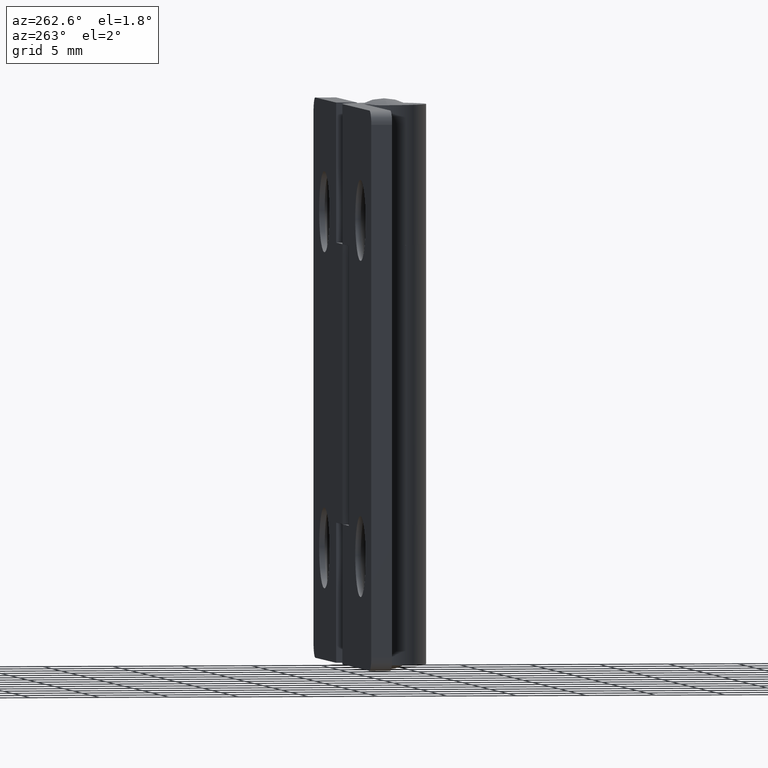
[diagram: clean part render]
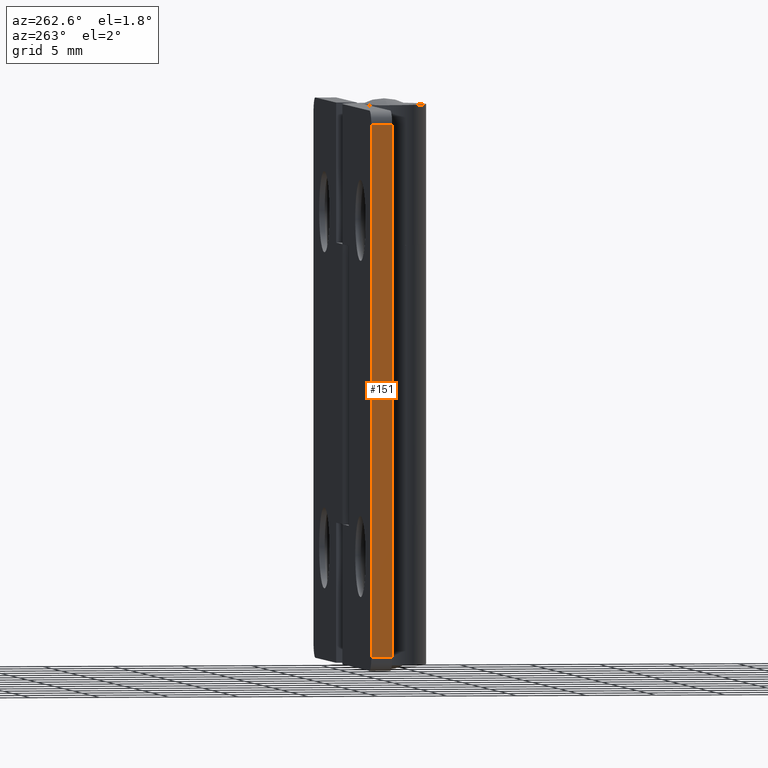
[diagram: same view with one face highlighted and labeled with its STEP entity id]
A machine part, auxiliary view. The second image highlights one B-rep face of the part: STEP entity #151.
In plain terms, the highlighted planar face has unit normal (-1, 0, 0).
Its self-contained STEP definition (entity closure, byte-faithful):
#151=ADVANCED_FACE('',(#226),#225,.T.);
#225=PLANE('',#768);
#226=FACE_OUTER_BOUND('',#769,.T.);
#765=CARTESIAN_POINT('',(-6.00000000000E+00,-1.65000000000E+00,-1.08000000000E+01));
#766=DIRECTION('',(-1.00000000000E+00,0.00000000000E+00,0.00000000000E+00));
#767=DIRECTION('',(0.00000000000E+00,0.00000000000E+00,1.00000000000E+00));
#768=AXIS2_PLACEMENT_3D('',#765,#766,#767);
#769=EDGE_LOOP('',(#1101,#1102,#1103,#1104));
#1101=ORIENTED_EDGE('',*,*,#1363,.T.);
#1102=ORIENTED_EDGE('',*,*,#1380,.T.);
#1103=ORIENTED_EDGE('',*,*,#1381,.F.);
#1104=ORIENTED_EDGE('',*,*,#1382,.T.);
#1363=EDGE_CURVE('',#1516,#1509,#1517,.T.);
#1380=EDGE_CURVE('',#1509,#1633,#1634,.T.);
#1381=EDGE_CURVE('',#1640,#1633,#1641,.T.);
#1382=EDGE_CURVE('',#1640,#1516,#1647,.T.);
#1509=VERTEX_POINT('',#2440);
#1516=VERTEX_POINT('',#2445);
#1517=LINE('',#2446,#2447);
#1633=VERTEX_POINT('',#2520);
#1634=LINE('',#2521,#2522);
#1640=VERTEX_POINT('',#2524);
#1641=LINE('',#2525,#2526);
#1647=LINE('',#2528,#2529);
#2440=CARTESIAN_POINT('',(-6.00000000000E+00,-1.13686837722E-13,-7.00000000000E+00));
#2445=CARTESIAN_POINT('',(-6.00000000000E+00,-1.13686837722E-13,3.10000000000E+01));
#2446=CARTESIAN_POINT('',(-6.00000000000E+00,-1.13686837722E-13,3.10000000000E+01));
#2447=VECTOR('',#2448,3.80000000000E+01);
#2448=DIRECTION('',(0.00000000000E+00,0.00000000000E+00,-1.00000000000E+00));
#2520=CARTESIAN_POINT('',(-6.00000000000E+00,-1.50000000000E+00,-7.00000000000E+00));
#2521=CARTESIAN_POINT('',(-6.00000000000E+00,-1.13686837722E-13,-7.00000000000E+00));
#2522=VECTOR('',#2523,1.50000000000E+00);
#2523=DIRECTION('',(0.00000000000E+00,-1.00000000000E+00,0.00000000000E+00));
#2524=CARTESIAN_POINT('',(-6.00000000000E+00,-1.50000000000E+00,3.10000000000E+01));
#2525=CARTESIAN_POINT('',(-6.00000000000E+00,-1.50000000000E+00,3.10000000000E+01));
#2526=VECTOR('',#2527,3.80000000000E+01);
#2527=DIRECTION('',(0.00000000000E+00,0.00000000000E+00,-1.00000000000E+00));
#2528=CARTESIAN_POINT('',(-6.00000000000E+00,-1.50000000000E+00,3.10000000000E+01));
#2529=VECTOR('',#2530,1.50000000000E+00);
#2530=DIRECTION('',(0.00000000000E+00,1.00000000000E+00,0.00000000000E+00));